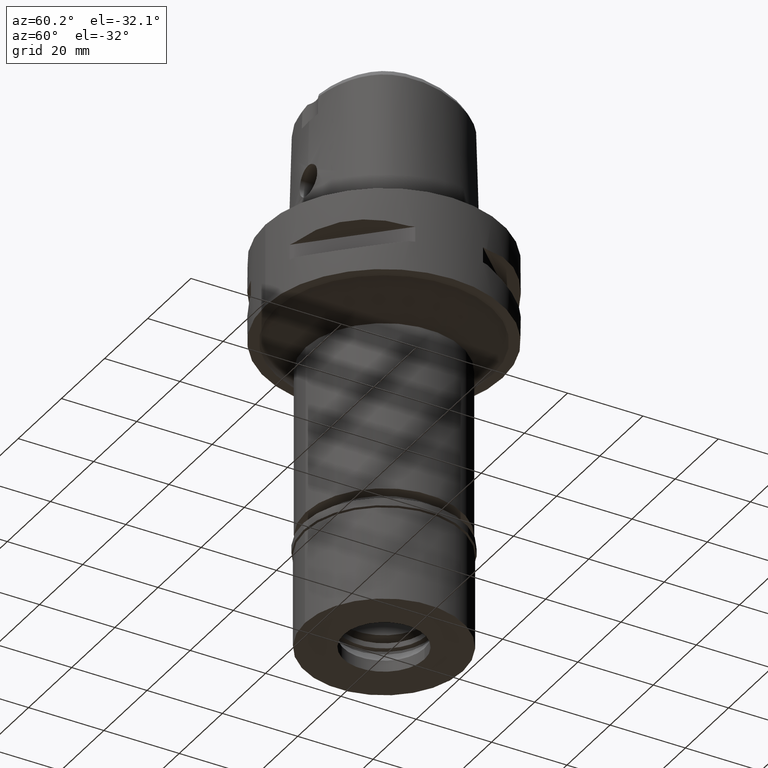
[diagram: clean part render]
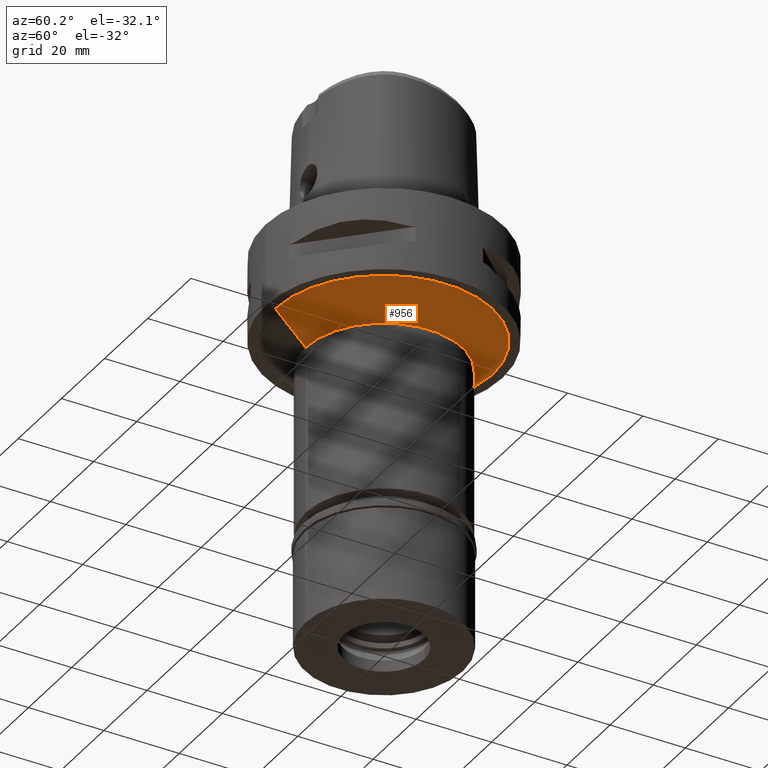
[diagram: same view with one face highlighted and labeled with its STEP entity id]
A machine part, auxiliary view. The second image highlights one B-rep face of the part: STEP entity #956.
In plain terms, the highlighted conical surface has half-angle 45 deg.
Its self-contained STEP definition (entity closure, byte-faithful):
#42 = CARTESIAN_POINT ( 'NONE',  ( 0.0000000000000000000, -28.80000000000000071, -22.00000000000000000 ) ) ;
#84 = DIRECTION ( 'NONE',  ( 0.0000000000000000000, 1.000000000000000000, 0.0000000000000000000 ) ) ;
#118 = CARTESIAN_POINT ( 'NONE',  ( 0.0000000000000000000, 0.0000000000000000000, -26.00000000000000000 ) ) ;
#183 = DIRECTION ( 'NONE',  ( 0.0000000000000000000, -0.7071067811865474617, -0.7071067811865474617 ) ) ;
#236 = AXIS2_PLACEMENT_3D ( 'NONE', #3800, #4195, #84 ) ;
#497 = ORIENTED_EDGE ( 'NONE', *, *, #3458, .T. ) ;
#581 = FACE_OUTER_BOUND ( 'NONE', #4307, .T. ) ;
#956 = ADVANCED_FACE ( 'NONE', ( #581 ), #1369, .T. ) ;
#1043 = CARTESIAN_POINT ( 'NONE',  ( 0.0000000000000000000, 0.0000000000000000000, -30.00000000000000000 ) ) ;
#1068 = DIRECTION ( 'NONE',  ( 0.0000000000000000000, 1.000000000000000000, 0.0000000000000000000 ) ) ;
#1120 = LINE ( 'NONE', #3053, #1386 ) ;
#1303 = DIRECTION ( 'NONE',  ( 0.0000000000000000000, 1.000000000000000000, 0.0000000000000000000 ) ) ;
#1369 = CONICAL_SURFACE ( 'NONE', #2496, 24.80000000000000071, 0.7853981633972997312 ) ;
#1386 = VECTOR ( 'NONE', #1571, 1000.000000000000114 ) ;
#1414 = ORIENTED_EDGE ( 'NONE', *, *, #3869, .F. ) ;
#1442 = CIRCLE ( 'NONE', #236, 28.80000000000000071 ) ;
#1461 = DIRECTION ( 'NONE',  ( 0.0000000000000000000, 0.0000000000000000000, -1.000000000000000000 ) ) ;
#1571 = DIRECTION ( 'NONE',  ( 0.0000000000000000000, 0.7071067811865474617, -0.7071067811865474617 ) ) ;
#1628 = CARTESIAN_POINT ( 'NONE',  ( 0.0000000000000000000, 28.80000000000000071, -22.00000000000000000 ) ) ;
#1818 = ORIENTED_EDGE ( 'NONE', *, *, #4534, .F. ) ;
#1822 = VERTEX_POINT ( 'NONE', #1628 ) ;
#1956 = CARTESIAN_POINT ( 'NONE',  ( 0.0000000000000000000, 20.80000000000000071, -30.00000000000000000 ) ) ;
#2120 = DIRECTION ( 'NONE',  ( 0.0000000000000000000, 0.0000000000000000000, 1.000000000000000000 ) ) ;
#2161 = AXIS2_PLACEMENT_3D ( 'NONE', #1043, #1461, #1068 ) ;
#2190 = CARTESIAN_POINT ( 'NONE',  ( 0.0000000000000000000, -20.80000000000000071, -30.00000000000000000 ) ) ;
#2236 = VECTOR ( 'NONE', #183, 1000.000000000000114 ) ;
#2496 = AXIS2_PLACEMENT_3D ( 'NONE', #118, #2120, #1303 ) ;
#2532 = LINE ( 'NONE', #3604, #2236 ) ;
#2903 = VERTEX_POINT ( 'NONE', #1956 ) ;
#3053 = CARTESIAN_POINT ( 'NONE',  ( 0.0000000000000000000, -28.80000000000000071, -22.00000000000000000 ) ) ;
#3412 = VERTEX_POINT ( 'NONE', #42 ) ;
#3458 = EDGE_CURVE ( 'NONE', #3412, #4522, #1120, .T. ) ;
#3604 = CARTESIAN_POINT ( 'NONE',  ( 0.0000000000000000000, 28.80000000000000071, -22.00000000000000000 ) ) ;
#3800 = CARTESIAN_POINT ( 'NONE',  ( 0.0000000000000000000, 0.0000000000000000000, -22.00000000000000000 ) ) ;
#3869 = EDGE_CURVE ( 'NONE', #1822, #2903, #2532, .T. ) ;
#4195 = DIRECTION ( 'NONE',  ( 0.0000000000000000000, 0.0000000000000000000, -1.000000000000000000 ) ) ;
#4307 = EDGE_LOOP ( 'NONE', ( #4824, #497, #1818, #1414 ) ) ;
#4485 = CIRCLE ( 'NONE', #2161, 20.80000000000000071 ) ;
#4522 = VERTEX_POINT ( 'NONE', #2190 ) ;
#4534 = EDGE_CURVE ( 'NONE', #2903, #4522, #4485, .T. ) ;
#4632 = EDGE_CURVE ( 'NONE', #1822, #3412, #1442, .T. ) ;
#4824 = ORIENTED_EDGE ( 'NONE', *, *, #4632, .T. ) ;